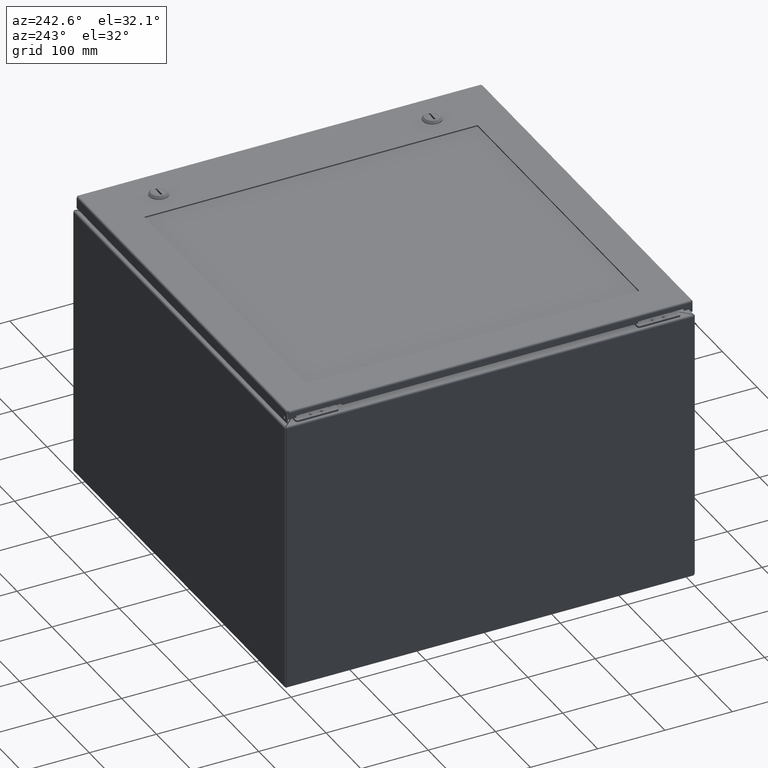
[diagram: clean part render]
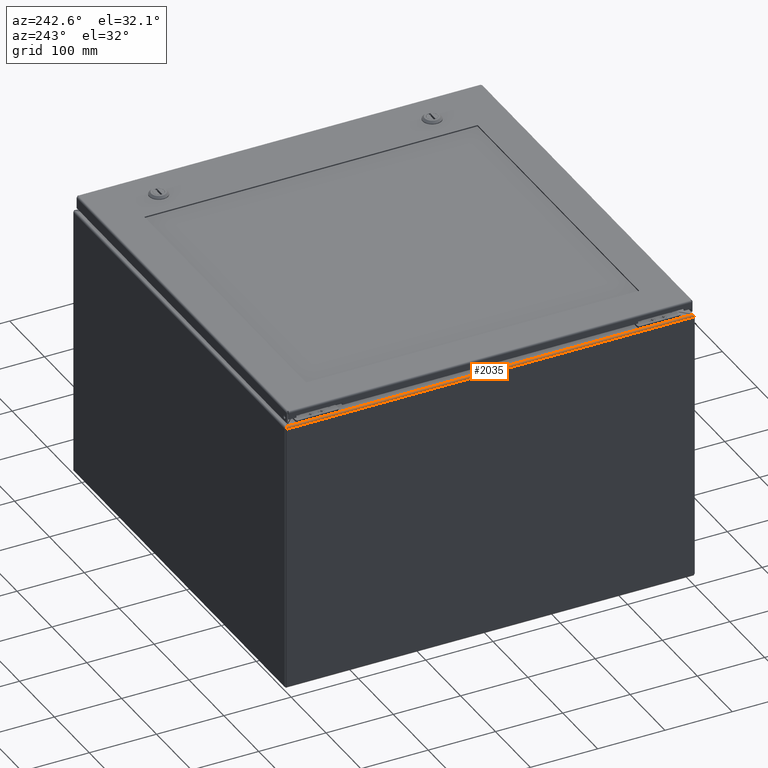
[diagram: same view with one face highlighted and labeled with its STEP entity id]
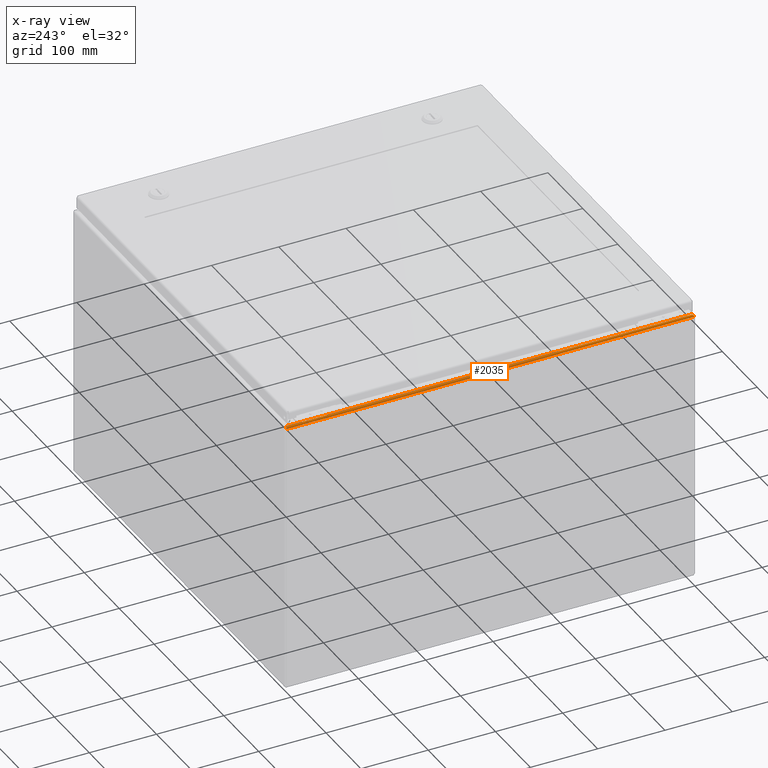
[diagram: x-ray of the same camera — body ghosted, the highlighted face saturated]
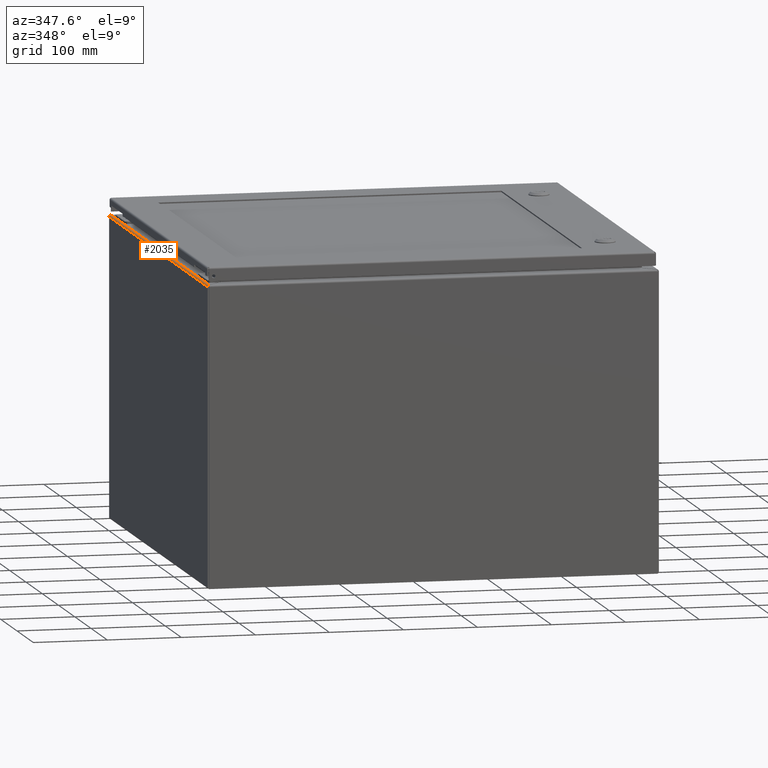
[diagram: same view with one face highlighted and labeled with its STEP entity id]
A machine part, auxiliary view. The second image highlights one B-rep face of the part: STEP entity #2035.
The next image is the same camera in x-ray: the body ghosted, the highlighted face saturated — about 0% of this face is hidden behind the body in this view.
A second angle (auxiliary view) of the same face is appended — the face is thin or edge-on in the first view.
In plain terms, the highlighted cylindrical surface (edge-blend (fillet) strip) has radius 2.6734 mm, axis along (-0, 1, -0).
Its self-contained STEP definition (entity closure, byte-faithful):
#583=CARTESIAN_POINT('',(-5.189200E-013,0.015559601860679,15.949824449444359));
#584=VERTEX_POINT('',#583);
#591=CARTESIAN_POINT('',(0.065093184459813,0.105249999999991,16.000000000000007));
#592=VERTEX_POINT('',#591);
#593=CARTESIAN_POINT('',(0.065093184459813,0.105249999999987,15.999999999999945));
#594=CARTESIAN_POINT('',(0.043395456306369,0.069461159878554,15.999999999999943));
#595=CARTESIAN_POINT('',(0.021697728152926,0.034286924102402,15.980322457229990));
#596=CARTESIAN_POINT('',(-5.175213E-013,0.015559601860681,15.949824449444362));
#597=B_SPLINE_CURVE_WITH_KNOTS('',3,(#593,#594,#595,#596),.UNSPECIFIED.,.F.,.U.,(4,4),(0.0,1.020109457143595),.UNSPECIFIED.);
#598=EDGE_CURVE('',#592,#584,#597,.T.);
#626=CARTESIAN_POINT('',(23.786906815539659,0.105249999999991,16.000000000000007));
#627=VERTEX_POINT('',#626);
#636=CARTESIAN_POINT('',(23.852000000000004,0.015559601860670,15.949824449444343));
#637=VERTEX_POINT('',#636);
#638=CARTESIAN_POINT('',(23.852000000000000,0.015559601860672,15.949824449444348));
#639=CARTESIAN_POINT('',(23.830302271846552,0.034286924102390,15.980322457229985));
#640=CARTESIAN_POINT('',(23.808604543693107,0.069461159878549,15.999999999999945));
#641=CARTESIAN_POINT('',(23.786906815539659,0.105249999999990,15.999999999999948));
#642=B_SPLINE_CURVE_WITH_KNOTS('',3,(#638,#639,#640,#641),.UNSPECIFIED.,.F.,.U.,(4,4),(0.0,1.020109457143771),.UNSPECIFIED.);
#643=EDGE_CURVE('',#637,#627,#642,.T.);
#1742=CARTESIAN_POINT('',(23.852000000000000,-4.016131E-015,15.894750000000005));
#1743=VERTEX_POINT('',#1742);
#1744=CARTESIAN_POINT('',(23.852000000000000,0.105249999999996,15.894750000000005));
#1745=DIRECTION('',(1.000000000000000,-8.102489E-035,4.975339E-035));
#1746=DIRECTION('',(-9.508119E-035,-0.852165302986942,0.523272678806350));
#1747=AXIS2_PLACEMENT_3D('',#1744,#1745,#1746);
#1748=CIRCLE('',#1747,0.105250000000004);
#1749=EDGE_CURVE('',#637,#1743,#1748,.T.);
#1988=CARTESIAN_POINT('',(0.065093184459814,0.105249999999991,16.000000000000007));
#1989=DIRECTION('',(1.0,0.0,0.0));
#1990=VECTOR('',#1989,23.721813631079847);
#1991=LINE('',#1988,#1990);
#1992=EDGE_CURVE('',#592,#627,#1991,.T.);
#2009=CARTESIAN_POINT('',(11.926000000000000,0.105249999999996,15.894750000000005));
#2010=DIRECTION('',(-1.0,-1.957834E-020,-3.183058E-034));
#2011=DIRECTION('',(0.0,-1.0,0.0));
#2012=AXIS2_PLACEMENT_3D('',#2009,#2010,#2011);
#2013=CYLINDRICAL_SURFACE('',#2012,0.105250000000045);
#2014=ORIENTED_EDGE('',*,*,#643,.T.);
#2015=ORIENTED_EDGE('',*,*,#1992,.F.);
#2016=ORIENTED_EDGE('',*,*,#598,.T.);
#2017=CARTESIAN_POINT('',(1.448797E-021,-4.016131E-015,15.894750000000005));
#2018=VERTEX_POINT('',#2017);
#2019=CARTESIAN_POINT('',(-2.868117E-033,0.105249999999996,15.894750000000005));
#2020=DIRECTION('',(-1.0,0.0,0.0));
#2021=DIRECTION('',(0.0,-1.0,0.0));
#2022=AXIS2_PLACEMENT_3D('',#2019,#2020,#2021);
#2023=CIRCLE('',#2022,0.105250000000002);
#2024=EDGE_CURVE('',#2018,#584,#2023,.T.);
#2025=ORIENTED_EDGE('',*,*,#2024,.F.);
#2026=CARTESIAN_POINT('',(23.852000000000004,-4.016248E-015,15.894750000000005));
#2027=DIRECTION('',(-1.0,0.0,0.0));
#2028=VECTOR('',#2027,23.852000000000004);
#2029=LINE('',#2026,#2028);
#2030=EDGE_CURVE('',#1743,#2018,#2029,.T.);
#2031=ORIENTED_EDGE('',*,*,#2030,.F.);
#2032=ORIENTED_EDGE('',*,*,#1749,.F.);
#2033=EDGE_LOOP('',(#2014,#2015,#2016,#2025,#2031,#2032));
#2034=FACE_OUTER_BOUND('',#2033,.T.);
#2035=ADVANCED_FACE('',(#2034),#2013,.T.);